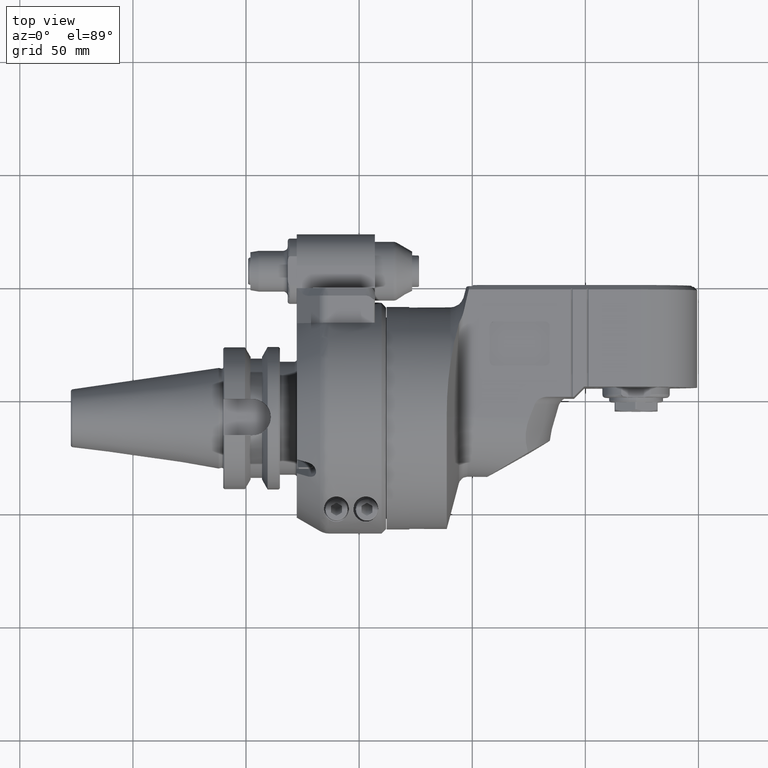
[diagram: clean part render]
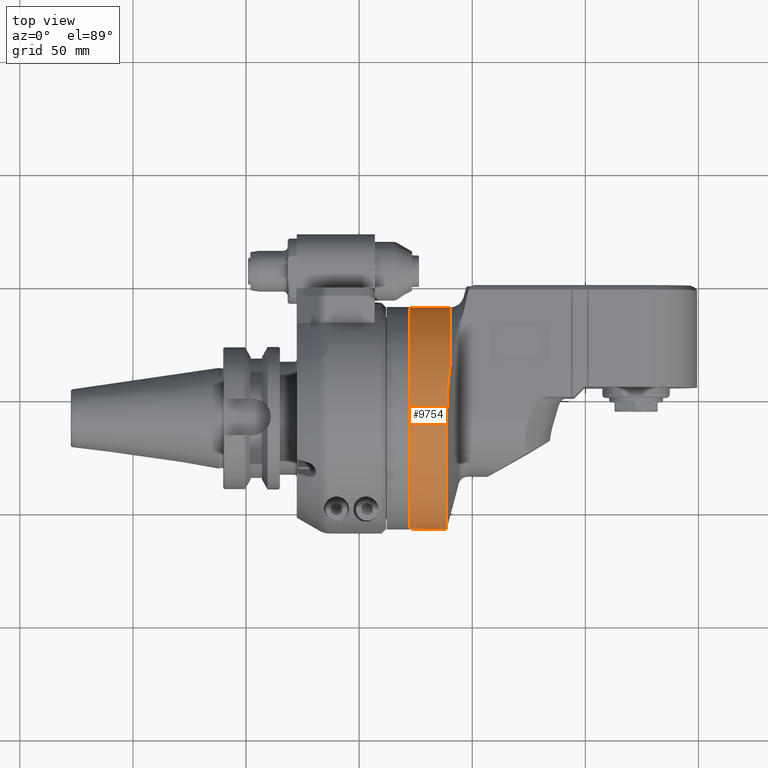
[diagram: same view with one face highlighted and labeled with its STEP entity id]
A machine part, top view. The second image highlights one B-rep face of the part: STEP entity #9754.
In plain terms, the highlighted cylindrical surface (bore or boss wall) has radius 49 mm, axis along (1, 0, -0).
Its self-contained STEP definition (entity closure, byte-faithful):
#26=ELLIPSE('',#10783,50.7285328400937,49.);
#27=ELLIPSE('',#10785,50.7285328400937,49.);
#28=ELLIPSE('',#10787,50.7285328400937,49.);
#1169=FACE_OUTER_BOUND('',#1829,.T.);
#1829=EDGE_LOOP('',(#8381,#8382,#8383,#8384,#8385,#8386,#8387,#8388));
#2402=CIRCLE('',#10781,49.);
#2403=CIRCLE('',#10784,49.);
#2404=CIRCLE('',#10786,49.);
#3148=LINE('',#47288,#3812);
#3812=VECTOR('',#13088,49.);
#4695=VERTEX_POINT('',#47245);
#4696=VERTEX_POINT('',#47246);
#4698=VERTEX_POINT('',#47285);
#4699=VERTEX_POINT('',#47287);
#4700=VERTEX_POINT('',#47290);
#4701=VERTEX_POINT('',#47292);
#5977=EDGE_CURVE('',#4695,#4696,#2402,.T.);
#5981=EDGE_CURVE('',#4696,#4698,#26,.T.);
#5982=EDGE_CURVE('',#4698,#4699,#3148,.T.);
#5983=EDGE_CURVE('',#4699,#4699,#2403,.T.);
#5984=EDGE_CURVE('',#4698,#4700,#27,.T.);
#5985=EDGE_CURVE('',#4701,#4700,#2404,.T.);
#5986=EDGE_CURVE('',#4695,#4701,#28,.T.);
#8381=ORIENTED_EDGE('',*,*,#5981,.T.);
#8382=ORIENTED_EDGE('',*,*,#5982,.T.);
#8383=ORIENTED_EDGE('',*,*,#5983,.T.);
#8384=ORIENTED_EDGE('',*,*,#5982,.F.);
#8385=ORIENTED_EDGE('',*,*,#5984,.T.);
#8386=ORIENTED_EDGE('',*,*,#5985,.F.);
#8387=ORIENTED_EDGE('',*,*,#5986,.F.);
#8388=ORIENTED_EDGE('',*,*,#5977,.T.);
#9284=CYLINDRICAL_SURFACE('',#10782,49.);
#9754=ADVANCED_FACE('',(#1169),#9284,.T.);
#10781=AXIS2_PLACEMENT_3D('',#47247,#13082,#13083);
#10782=AXIS2_PLACEMENT_3D('',#47284,#13084,#13085);
#10783=AXIS2_PLACEMENT_3D('',#47286,#13086,#13087);
#10784=AXIS2_PLACEMENT_3D('',#47289,#13089,#13090);
#10785=AXIS2_PLACEMENT_3D('',#47291,#13091,#13092);
#10786=AXIS2_PLACEMENT_3D('',#47293,#13093,#13094);
#10787=AXIS2_PLACEMENT_3D('',#47294,#13095,#13096);
#13082=DIRECTION('center_axis',(-1.,0.,0.));
#13083=DIRECTION('ref_axis',(0.,0.482327426010098,0.875991012578596));
#13084=DIRECTION('center_axis',(1.,0.,0.));
#13085=DIRECTION('ref_axis',(0.,-0.0871557427476639,0.996194698091745));
#13086=DIRECTION('center_axis',(-0.965925826289076,0.,0.258819045102493));
#13087=DIRECTION('ref_axis',(0.258819045102493,-2.18855733148206E-17,0.965925826289076));
#13088=DIRECTION('',(-1.,0.,0.));
#13089=DIRECTION('center_axis',(1.,0.,0.));
#13090=DIRECTION('ref_axis',(0.,0.0871557427476639,-0.996194698091745));
#13091=DIRECTION('center_axis',(-0.965925826289076,0.,0.258819045102493));
#13092=DIRECTION('ref_axis',(0.258819045102493,-2.18855733148206E-17,0.965925826289076));
#13093=DIRECTION('center_axis',(1.,0.,0.));
#13094=DIRECTION('ref_axis',(0.,-3.889858956483E-14,1.));
#13095=DIRECTION('center_axis',(0.965925826289076,0.,0.258819045102493));
#13096=DIRECTION('ref_axis',(-0.258819045102493,-2.18855733148206E-17,0.965925826289076));
#47245=CARTESIAN_POINT('',(16.39603811104,23.6340438745,42.92355961635));
#47246=CARTESIAN_POINT('',(16.39603811104,23.6340438745,-42.92355961635));
#47247=CARTESIAN_POINT('Origin',(16.39603811104,0.,0.));
#47284=CARTESIAN_POINT('Origin',(-7.9,0.,0.));
#47285=CARTESIAN_POINT('',(14.8178225684795,4.27063139463554,-48.8135402064955));
#47286=CARTESIAN_POINT('Origin',(27.8973712465126,0.,0.));
#47287=CARTESIAN_POINT('',(-1.8,4.270631394635,-48.8135402065));
#47288=CARTESIAN_POINT('',(-7.9,4.27063139463554,-48.8135402064955));
#47289=CARTESIAN_POINT('Origin',(-1.8,0.,0.));
#47290=CARTESIAN_POINT('',(14.76786081739,-2.09277040373E-12,-49.));
#47291=CARTESIAN_POINT('Origin',(27.8973712465126,0.,0.));
#47292=CARTESIAN_POINT('',(14.76786081739,-1.906030888676E-12,49.));
#47293=CARTESIAN_POINT('Origin',(14.76786081739,0.,0.));
#47294=CARTESIAN_POINT('Origin',(27.8973712465092,0.,0.));